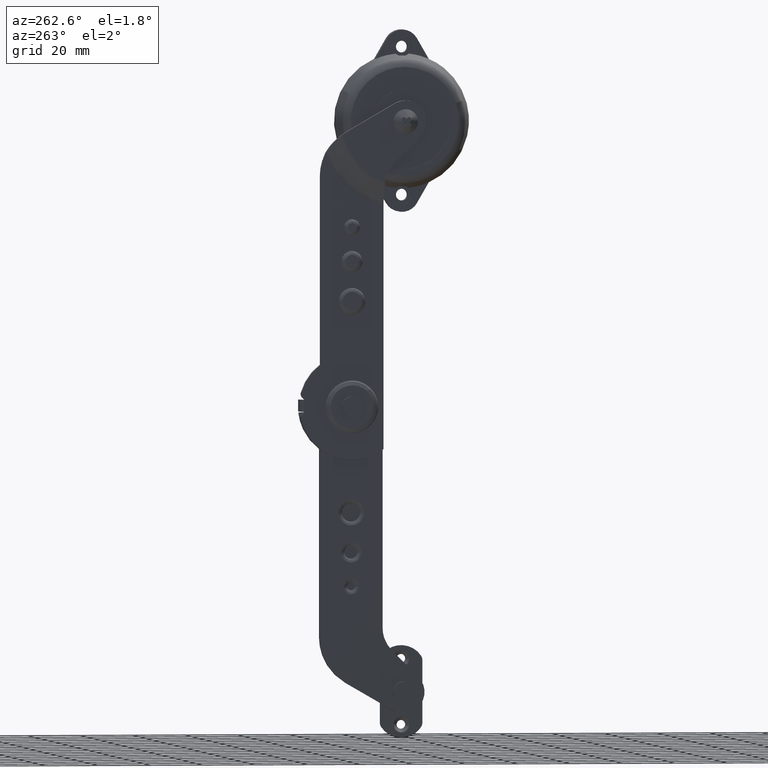
[diagram: clean part render]
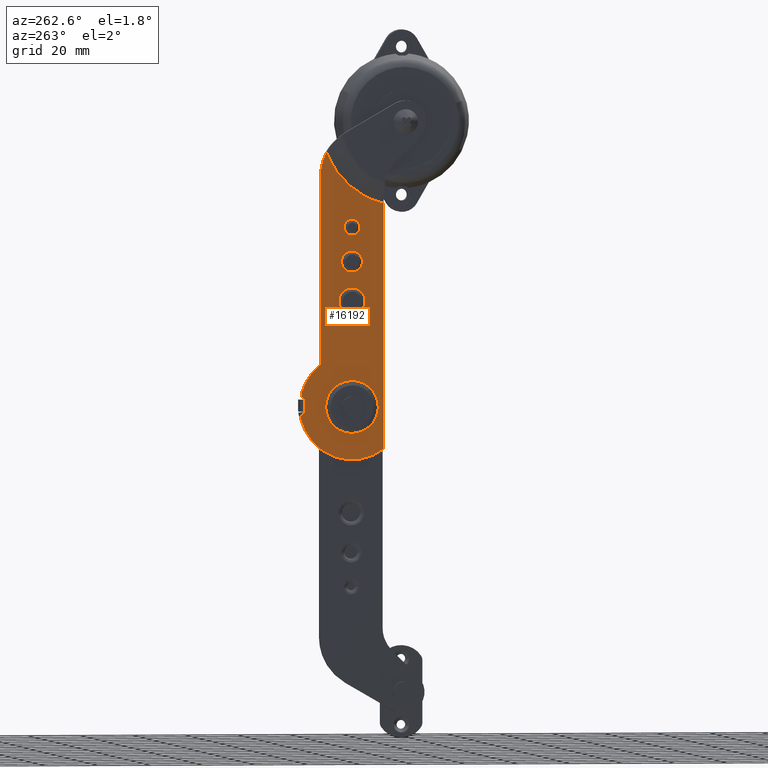
[diagram: same view with one face highlighted and labeled with its STEP entity id]
A machine part, auxiliary view. The second image highlights one B-rep face of the part: STEP entity #16192.
In plain terms, the highlighted face is a freeform B-spline surface patch.
Its self-contained STEP definition (entity closure, byte-faithful):
#13078=CARTESIAN_POINT('',(-1.999999999898364,-9.025852843031693,-4.305110969298060));
#13079=VERTEX_POINT('',#13078);
#13085=CARTESIAN_POINT('',(-2.000000000000140,1.136868E-013,10.000000000000011));
#13086=VERTEX_POINT('',#13085);
#13087=CARTESIAN_POINT('',(-1.999999999898364,-9.025852843031695,-4.305110969298060));
#13088=CARTESIAN_POINT('',(-1.999999999905630,-10.000000000085207,-2.262768983272771));
#13089=CARTESIAN_POINT('',(-1.999999999917144,-10.000000000074809,-3.572830E-011));
#13090=CARTESIAN_POINT('',(-1.999999999968033,-10.000000000028871,9.999999999986184));
#13091=CARTESIAN_POINT('',(-2.000000000000140,1.136868E-013,10.000000000000011));
#13099=(BOUNDED_CURVE()B_SPLINE_CURVE(2,(#13087,#13088,#13089,#13090,#13091),.UNSPECIFIED.,.F.,.U.)B_SPLINE_CURVE_WITH_KNOTS((3,2,3),(0.676854720116742,0.750000000000000,1.0),.UNSPECIFIED.)CURVE()GEOMETRIC_REPRESENTATION_ITEM()RATIONAL_B_SPLINE_CURVE((0.878755441483299,0.914304974135927,1.0,0.707106781186548,1.0))REPRESENTATION_ITEM(''));
#13100=EDGE_CURVE('',#13079,#13086,#13099,.T.);
#13102=CARTESIAN_POINT('',(-1.999999999898348,9.025852843031935,4.305110969298012));
#13103=VERTEX_POINT('',#13102);
#13104=CARTESIAN_POINT('',(-2.000000000000140,1.136868E-013,10.000000000000011));
#13105=CARTESIAN_POINT('',(-1.999999999949244,6.309530112981989,10.000000000021915));
#13106=CARTESIAN_POINT('',(-1.999999999898349,9.025852843031935,4.305110969298012));
#13114=(BOUNDED_CURVE()B_SPLINE_CURVE(2,(#13104,#13105,#13106),.UNSPECIFIED.,.F.,.U.)B_SPLINE_CURVE_WITH_KNOTS((3,3),(0.0,0.176854720116743),.UNSPECIFIED.)CURVE()GEOMETRIC_REPRESENTATION_ITEM()RATIONAL_B_SPLINE_CURVE((1.0,0.792801807050620,0.878755441483300))REPRESENTATION_ITEM(''));
#13115=EDGE_CURVE('',#13086,#13103,#13114,.T.);
#13161=CARTESIAN_POINT('',(-2.000000000000140,1.136868E-013,-9.999999999999993));
#13162=VERTEX_POINT('',#13161);
#13163=CARTESIAN_POINT('',(-1.999999999898349,9.025852843031935,4.305110969298012));
#13164=CARTESIAN_POINT('',(-1.999999999905615,10.000000000085421,2.262768983272748));
#13165=CARTESIAN_POINT('',(-1.999999999917131,10.000000000075030,3.573943E-011));
#13166=CARTESIAN_POINT('',(-1.999999999968027,10.000000000029097,-9.999999999986173));
#13167=CARTESIAN_POINT('',(-2.000000000000140,1.136868E-013,-9.999999999999993));
#13175=(BOUNDED_CURVE()B_SPLINE_CURVE(2,(#13163,#13164,#13165,#13166,#13167),.UNSPECIFIED.,.F.,.U.)B_SPLINE_CURVE_WITH_KNOTS((3,2,3),(0.176854720116743,0.250000000000000,0.500000000000000),.UNSPECIFIED.)CURVE()GEOMETRIC_REPRESENTATION_ITEM()RATIONAL_B_SPLINE_CURVE((0.878755441483300,0.914304974135928,1.0,0.707106781186548,1.0))REPRESENTATION_ITEM(''));
#13176=EDGE_CURVE('',#13103,#13162,#13175,.T.);
#13178=CARTESIAN_POINT('',(-2.000000000000140,1.136868E-013,-9.999999999999993));
#13179=CARTESIAN_POINT('',(-1.999999999949253,-6.309530112981723,-10.000000000021904));
#13180=CARTESIAN_POINT('',(-1.999999999898364,-9.025852843031695,-4.305110969298060));
#13188=(BOUNDED_CURVE()B_SPLINE_CURVE(2,(#13178,#13179,#13180),.UNSPECIFIED.,.F.,.U.)B_SPLINE_CURVE_WITH_KNOTS((3,3),(0.500000000000000,0.676854720116742),.UNSPECIFIED.)CURVE()GEOMETRIC_REPRESENTATION_ITEM()RATIONAL_B_SPLINE_CURVE((1.0,0.792801807050621,0.878755441483299))REPRESENTATION_ITEM(''));
#13189=EDGE_CURVE('',#13162,#13079,#13188,.T.);
#13946=CARTESIAN_POINT('',(-2.000000001796303,-3.350112159051147,57.185577386590751));
#13947=VERTEX_POINT('',#13946);
#13961=CARTESIAN_POINT('',(-1.999999999999981,0.0,58.999999999997613));
#13962=VERTEX_POINT('',#13961);
#13963=CARTESIAN_POINT('',(-1.999999999999981,0.0,58.999999999997613));
#13964=CARTESIAN_POINT('',(-2.000000000898142,-2.166402228638456,58.999999999690885));
#13965=CARTESIAN_POINT('',(-2.000000001796302,-3.350112159051148,57.185577386590751));
#13973=(BOUNDED_CURVE()B_SPLINE_CURVE(2,(#13963,#13964,#13965),.UNSPECIFIED.,.F.,.U.)B_SPLINE_CURVE_WITH_KNOTS((3,3),(0.0,0.312797065917018),.UNSPECIFIED.)CURVE()GEOMETRIC_REPRESENTATION_ITEM()RATIONAL_B_SPLINE_CURVE((1.0,0.816767721056322,0.862793519052128))REPRESENTATION_ITEM(''));
#13974=EDGE_CURVE('',#13962,#13947,#13973,.T.);
#13976=CARTESIAN_POINT('',(-2.000000001796304,3.350112159051150,52.814422613409242));
#13977=VERTEX_POINT('',#13976);
#13978=CARTESIAN_POINT('',(-2.000000001796305,3.350112159051150,52.814422613409235));
#13979=CARTESIAN_POINT('',(-2.000000001651658,3.999999999133034,53.810588280236679));
#13980=CARTESIAN_POINT('',(-2.000000001384588,3.999999999272832,55.000000000472838));
#13981=CARTESIAN_POINT('',(-2.000000000486427,3.999999999742975,59.000000000163709));
#13982=CARTESIAN_POINT('',(-1.999999999999981,0.0,58.999999999997613));
#13990=(BOUNDED_CURVE()B_SPLINE_CURVE(2,(#13978,#13979,#13980,#13981,#13982),.UNSPECIFIED.,.F.,.U.)B_SPLINE_CURVE_WITH_KNOTS((3,2,3),(0.312797065917017,0.500000000000000,1.0),.UNSPECIFIED.)CURVE()GEOMETRIC_REPRESENTATION_ITEM()RATIONAL_B_SPLINE_CURVE((0.862793519052128,0.890339060130225,1.0,0.707106781186547,1.0))REPRESENTATION_ITEM(''));
#13991=EDGE_CURVE('',#13977,#13962,#13990,.T.);
#14054=CARTESIAN_POINT('',(-2.0,0.0,51.000000000002402));
#14055=VERTEX_POINT('',#14054);
#14056=CARTESIAN_POINT('',(-2.0,0.0,51.000000000002402));
#14057=CARTESIAN_POINT('',(-2.000000000898152,2.166402228638455,51.000000000309122));
#14058=CARTESIAN_POINT('',(-2.000000001796305,3.350112159051150,52.814422613409235));
#14066=(BOUNDED_CURVE()B_SPLINE_CURVE(2,(#14056,#14057,#14058),.UNSPECIFIED.,.F.,.U.)B_SPLINE_CURVE_WITH_KNOTS((3,3),(0.0,0.312797065917017),.UNSPECIFIED.)CURVE()GEOMETRIC_REPRESENTATION_ITEM()RATIONAL_B_SPLINE_CURVE((1.0,0.816767721056322,0.862793519052128))REPRESENTATION_ITEM(''));
#14067=EDGE_CURVE('',#14055,#13977,#14066,.T.);
#14069=CARTESIAN_POINT('',(-2.000000001796302,-3.350112159051148,57.185577386590751));
#14070=CARTESIAN_POINT('',(-2.000000001651658,-3.999999999133023,56.189411719763307));
#14071=CARTESIAN_POINT('',(-2.000000001384591,-3.999999999272824,54.999999999527162));
#14072=CARTESIAN_POINT('',(-2.000000000486440,-3.999999999742973,50.999999999836291));
#14073=CARTESIAN_POINT('',(-2.0,0.0,51.000000000002402));
#14081=(BOUNDED_CURVE()B_SPLINE_CURVE(2,(#14069,#14070,#14071,#14072,#14073),.UNSPECIFIED.,.F.,.U.)B_SPLINE_CURVE_WITH_KNOTS((3,2,3),(0.312797065917018,0.500000000000000,1.0),.UNSPECIFIED.)CURVE()GEOMETRIC_REPRESENTATION_ITEM()RATIONAL_B_SPLINE_CURVE((0.862793519052128,0.890339060130226,1.0,0.707106781186547,1.0))REPRESENTATION_ITEM(''));
#14082=EDGE_CURVE('',#13947,#14055,#14081,.T.);
#14166=CARTESIAN_POINT('',(-2.000000007010111,-4.187640196067919,42.731971732003117));
#14167=VERTEX_POINT('',#14166);
#14181=CARTESIAN_POINT('',(-2.000000000000021,1.136868E-013,45.000000000000192));
#14182=VERTEX_POINT('',#14181);
#14183=CARTESIAN_POINT('',(-2.000000000000021,1.136868E-013,45.000000000000192));
#14184=CARTESIAN_POINT('',(-2.000000003505066,-2.708002784251462,44.999999998803240));
#14185=CARTESIAN_POINT('',(-2.000000007010112,-4.187640196067919,42.731971732003117));
#14193=(BOUNDED_CURVE()B_SPLINE_CURVE(2,(#14183,#14184,#14185),.UNSPECIFIED.,.F.,.U.)B_SPLINE_CURVE_WITH_KNOTS((3,3),(0.0,0.312797065888605),.UNSPECIFIED.)CURVE()GEOMETRIC_REPRESENTATION_ITEM()RATIONAL_B_SPLINE_CURVE((1.0,0.816767721072966,0.862793519043767))REPRESENTATION_ITEM(''));
#14194=EDGE_CURVE('',#14182,#14167,#14193,.T.);
#14196=CARTESIAN_POINT('',(-2.000000007010115,4.187640196068148,37.268028267996883));
#14197=VERTEX_POINT('',#14196);
#14198=CARTESIAN_POINT('',(-2.000000007010115,4.187640196068148,37.268028267996868));
#14199=CARTESIAN_POINT('',(-2.000000006445640,4.999999996626310,38.513235351537574));
#14200=CARTESIAN_POINT('',(-2.000000005403404,4.999999997171873,40.000000001845230));
#14201=CARTESIAN_POINT('',(-2.000000001898357,4.999999999006603,45.000000000648463));
#14202=CARTESIAN_POINT('',(-2.000000000000021,1.136868E-013,45.000000000000192));
#14210=(BOUNDED_CURVE()B_SPLINE_CURVE(2,(#14198,#14199,#14200,#14201,#14202),.UNSPECIFIED.,.F.,.U.)B_SPLINE_CURVE_WITH_KNOTS((3,2,3),(0.312797065888605,0.500000000000000,1.0),.UNSPECIFIED.)CURVE()GEOMETRIC_REPRESENTATION_ITEM()RATIONAL_B_SPLINE_CURVE((0.862793519043767,0.890339060113582,1.0,0.707106781186548,1.0))REPRESENTATION_ITEM(''));
#14211=EDGE_CURVE('',#14197,#14182,#14210,.T.);
#14274=CARTESIAN_POINT('',(-2.000000000000035,1.136868E-013,34.999999999999822));
#14275=VERTEX_POINT('',#14274);
#14276=CARTESIAN_POINT('',(-2.000000000000035,1.136868E-013,34.999999999999822));
#14277=CARTESIAN_POINT('',(-2.000000003505075,2.708002784251693,35.000000001196781));
#14278=CARTESIAN_POINT('',(-2.000000007010115,4.187640196068148,37.268028267996883));
#14286=(BOUNDED_CURVE()B_SPLINE_CURVE(2,(#14276,#14277,#14278),.UNSPECIFIED.,.F.,.U.)B_SPLINE_CURVE_WITH_KNOTS((3,3),(0.0,0.312797065888605),.UNSPECIFIED.)CURVE()GEOMETRIC_REPRESENTATION_ITEM()RATIONAL_B_SPLINE_CURVE((1.0,0.816767721072966,0.862793519043767))REPRESENTATION_ITEM(''));
#14287=EDGE_CURVE('',#14275,#14197,#14286,.T.);
#14289=CARTESIAN_POINT('',(-2.000000007010112,-4.187640196067919,42.731971732003117));
#14290=CARTESIAN_POINT('',(-2.000000006445637,-4.999999996626084,41.486764648462440));
#14291=CARTESIAN_POINT('',(-2.000000005403404,-4.999999997171646,39.999999998154770));
#14292=CARTESIAN_POINT('',(-2.000000001898366,-4.999999999006375,34.999999999351552));
#14293=CARTESIAN_POINT('',(-2.000000000000035,1.136868E-013,34.999999999999822));
#14301=(BOUNDED_CURVE()B_SPLINE_CURVE(2,(#14289,#14290,#14291,#14292,#14293),.UNSPECIFIED.,.F.,.U.)B_SPLINE_CURVE_WITH_KNOTS((3,2,3),(0.312797065888605,0.500000000000000,1.0),.UNSPECIFIED.)CURVE()GEOMETRIC_REPRESENTATION_ITEM()RATIONAL_B_SPLINE_CURVE((0.862793519043767,0.890339060113581,1.0,0.707106781186548,1.0))REPRESENTATION_ITEM(''));
#14302=EDGE_CURVE('',#14167,#14275,#14301,.T.);
#14690=CARTESIAN_POINT('',(-2.000000000024074,0.0,65.000000000017337));
#14691=VERTEX_POINT('',#14690);
#14725=CARTESIAN_POINT('',(-2.000000000012017,0.0,70.999999999990195));
#14726=VERTEX_POINT('',#14725);
#14742=CARTESIAN_POINT('',(-2.000000000024074,0.0,65.000000000017337));
#14743=CARTESIAN_POINT('',(-2.000000000024074,0.392768043786944,64.999542033756953));
#14744=CARTESIAN_POINT('',(-2.000000000023819,1.030469033287618,65.127233266377189));
#14745=CARTESIAN_POINT('',(-2.000000000022864,1.869754850051697,65.602531432663497));
#14746=CARTESIAN_POINT('',(-2.000000000021577,2.494798584165423,66.243008080790759));
#14747=CARTESIAN_POINT('',(-2.000000000019998,2.876314599047245,67.024970495723906));
#14748=CARTESIAN_POINT('',(-2.000000000018413,3.025327959765366,67.826062924761928));
#14749=CARTESIAN_POINT('',(-2.000000000016630,2.972479820169463,68.691362776971189));
#14750=CARTESIAN_POINT('',(-2.000000000014945,2.629547074028307,69.548831412236012));
#14751=CARTESIAN_POINT('',(-2.000000000013367,1.975563725265460,70.326035205304578));
#14752=CARTESIAN_POINT('',(-2.000000000012296,1.104320124707930,70.862835522886954));
#14753=CARTESIAN_POINT('',(-2.000000000012016,0.368145682975373,71.000299599565423));
#14754=CARTESIAN_POINT('',(-2.000000000012017,0.0,70.999999999990195));
#14755=B_SPLINE_CURVE_WITH_KNOTS('',3,(#14742,#14743,#14744,#14745,#14746,#14747,#14748,#14749,#14750,#14751,#14752,#14753,#14754),.UNSPECIFIED.,.F.,.U.,(4,1,1,1,1,1,1,1,1,1,4),(0.000001790281056,1.178061172659323,1.914418879228660,2.871745702420085,3.829015889850578,4.491696999046352,5.301418579992856,6.406058932452281,7.216034190309014,8.320633919790765,9.425014467606015),.UNSPECIFIED.);
#14756=EDGE_CURVE('',#14691,#14726,#14755,.T.);
#14805=CARTESIAN_POINT('',(-2.000000000012017,0.0,70.999999999990195));
#14806=CARTESIAN_POINT('',(-2.000000000012022,-0.343646992545134,71.000257906673241));
#14807=CARTESIAN_POINT('',(-2.000000000012203,-0.883408049740910,70.906147637640217));
#14808=CARTESIAN_POINT('',(-2.000000000012948,-1.663796865759524,70.537143646748063));
#14809=CARTESIAN_POINT('',(-2.000000000013975,-2.272469852727591,70.025066406917645));
#14810=CARTESIAN_POINT('',(-2.000000000015355,-2.718031469576183,69.339792727320329));
#14811=CARTESIAN_POINT('',(-2.000000000017089,-3.015714453660978,68.475917837572240));
#14812=CARTESIAN_POINT('',(-2.000000000019157,-3.028373308778458,67.447685377911327));
#14813=CARTESIAN_POINT('',(-2.000000000021065,-2.648066272950905,66.497513493989374));
#14814=CARTESIAN_POINT('',(-2.000000000022305,-2.154023694954324,65.880642883134698));
#14815=CARTESIAN_POINT('',(-2.000000000023122,-1.658353186133160,65.473830315171611));
#14816=CARTESIAN_POINT('',(-2.000000000023856,-0.956947271819298,65.109857994059709));
#14817=CARTESIAN_POINT('',(-2.000000000024074,-0.368174859532798,64.999652610779137));
#14818=CARTESIAN_POINT('',(-2.000000000024074,0.0,65.000000000017337));
#14819=B_SPLINE_CURVE_WITH_KNOTS('',3,(#14805,#14806,#14807,#14808,#14809,#14810,#14811,#14812,#14813,#14814,#14815,#14816,#14817,#14818),.UNSPECIFIED.,.F.,.U.,(4,1,1,1,1,1,1,1,1,1,1,4),(0.000001790265815,1.030838436003519,1.619928622852167,2.577166494894646,3.387158789861413,4.049929322243203,5.301418579991310,6.406058932452229,7.068766472407342,7.657867175381379,8.320633919790723,9.425014467606019),.UNSPECIFIED.);
#14820=EDGE_CURVE('',#14726,#14691,#14819,.T.);
#15075=CARTESIAN_POINT('',(-1.999999999999895,18.000000000000551,-1.750000000000220));
#15076=VERTEX_POINT('',#15075);
#15090=CARTESIAN_POINT('',(-1.999999999999880,18.0,2.750000000000000));
#15091=VERTEX_POINT('',#15090);
#15092=CARTESIAN_POINT('',(-1.999999999999895,18.000000000000551,-1.750000000000220));
#15093=CARTESIAN_POINT('',(-1.999999999999880,18.0,2.750000000000000));
#15094=QUASI_UNIFORM_CURVE('',1,(#15092,#15093),.UNSPECIFIED.,.F.,.U.);
#15095=EDGE_CURVE('',#15076,#15091,#15094,.T.);
#15215=CARTESIAN_POINT('',(-1.999999999999870,19.245019821889748,5.443272182712180));
#15216=VERTEX_POINT('',#15215);
#15222=CARTESIAN_POINT('',(-2.000000000000120,12.000000000000400,16.0));
#15223=VERTEX_POINT('',#15222);
#15224=CARTESIAN_POINT('',(-1.999999999999870,19.245019821889748,5.443272182712180));
#15225=CARTESIAN_POINT('',(-1.999999999999890,17.405906158468316,11.945570381148972));
#15226=CARTESIAN_POINT('',(-1.999999999999890,12.000000000000430,16.000000000000050));
#15234=(BOUNDED_CURVE()B_SPLINE_CURVE(2,(#15224,#15225,#15226),.UNSPECIFIED.,.F.,.U.)CURVE()GEOMETRIC_REPRESENTATION_ITEM()QUASI_UNIFORM_CURVE()RATIONAL_B_SPLINE_CURVE((1.0,0.947386268099017,1.0))REPRESENTATION_ITEM(''));
#15235=EDGE_CURVE('',#15216,#15223,#15234,.T.);
#15274=CARTESIAN_POINT('',(-1.999999999999880,18.734731402068199,3.484731402062105));
#15275=VERTEX_POINT('',#15274);
#15281=CARTESIAN_POINT('',(-1.999999999999875,18.734731402068199,3.484731402062103));
#15282=CARTESIAN_POINT('',(-1.999999999999875,19.564330359362824,4.314330359350046));
#15283=CARTESIAN_POINT('',(-1.999999999999875,19.245019821889709,5.443272182712169));
#15291=(BOUNDED_CURVE()B_SPLINE_CURVE(2,(#15281,#15282,#15283),.UNSPECIFIED.,.F.,.U.)CURVE()GEOMETRIC_REPRESENTATION_ITEM()QUASI_UNIFORM_CURVE()RATIONAL_B_SPLINE_CURVE((1.0,0.862544337234567,1.0))REPRESENTATION_ITEM(''));
#15292=EDGE_CURVE('',#15275,#15216,#15291,.T.);
#15313=CARTESIAN_POINT('',(-1.999999999999880,18.0,2.750000000000000));
#15314=CARTESIAN_POINT('',(-1.999999999999880,18.734731402068199,3.484731402062105));
#15315=QUASI_UNIFORM_CURVE('',1,(#15313,#15314),.UNSPECIFIED.,.F.,.U.);
#15316=EDGE_CURVE('',#15091,#15275,#15315,.T.);
#15384=CARTESIAN_POINT('',(-1.999999999999900,18.940051797775450,-2.690051797775175));
#15385=VERTEX_POINT('',#15384);
#15391=CARTESIAN_POINT('',(-1.999999999999900,18.940051797775450,-2.690051797775175));
#15392=CARTESIAN_POINT('',(-1.999999999999895,18.000000000000551,-1.750000000000220));
#15393=QUASI_UNIFORM_CURVE('',1,(#15391,#15392),.UNSPECIFIED.,.F.,.U.);
#15394=EDGE_CURVE('',#15385,#15076,#15393,.T.);
#15429=CARTESIAN_POINT('',(-1.999999999999910,19.473153594891500,-4.560294844609249));
#15430=VERTEX_POINT('',#15429);
#15436=CARTESIAN_POINT('',(-1.999999999999905,19.473153594891532,-4.560294844609256));
#15437=CARTESIAN_POINT('',(-1.999999999999905,19.726873254097079,-3.476873254096735));
#15438=CARTESIAN_POINT('',(-1.999999999999905,18.940051797775460,-2.690051797775164));
#15446=(BOUNDED_CURVE()B_SPLINE_CURVE(2,(#15436,#15437,#15438),.UNSPECIFIED.,.F.,.U.)CURVE()GEOMETRIC_REPRESENTATION_ITEM()QUASI_UNIFORM_CURVE()RATIONAL_B_SPLINE_CURVE((1.0,0.873856160206027,1.0))REPRESENTATION_ITEM(''));
#15447=EDGE_CURVE('',#15430,#15385,#15446,.T.);
#15486=CARTESIAN_POINT('',(-2.000000000000240,-11.999999999999760,-15.999999999999501));
#15487=VERTEX_POINT('',#15486);
#15493=CARTESIAN_POINT('',(-2.000000000000240,-11.999999999999760,-15.999999999999501));
#15494=CARTESIAN_POINT('',(-2.000000000000177,-10.305728844890730,-17.272310268193841));
#15495=CARTESIAN_POINT('',(-2.000000000000077,-7.665780243662476,-18.660041971315461));
#15496=CARTESIAN_POINT('',(-2.000000000000006,-3.866892364055190,-19.685280557329200));
#15497=CARTESIAN_POINT('',(-1.999999999999931,-0.577945146775864,-20.109171775965901));
#15498=CARTESIAN_POINT('',(-1.999999999999907,2.900196048401581,-19.907206829213770));
#15499=CARTESIAN_POINT('',(-1.999999999999930,6.470009656007568,-19.018354519356478));
#15500=CARTESIAN_POINT('',(-1.999999999999877,9.328714128581771,-17.786865548481799));
#15501=CARTESIAN_POINT('',(-1.999999999999899,12.302431954943691,-15.899016874334359));
#15502=CARTESIAN_POINT('',(-1.999999999999877,15.218630404335530,-13.236573004363301));
#15503=CARTESIAN_POINT('',(-1.999999999999917,17.915994807046371,-9.343329810357039));
#15504=CARTESIAN_POINT('',(-1.999999999999852,19.084784878585751,-6.220731638391777));
#15505=CARTESIAN_POINT('',(-1.999999999999910,19.473153594891500,-4.560294844609249));
#15506=B_SPLINE_CURVE_WITH_KNOTS('',3,(#15493,#15494,#15495,#15496,#15497,#15498,#15499,#15500,#15501,#15502,#15503,#15504,#15505),.UNSPECIFIED.,.F.,.U.,(4,1,1,1,1,1,1,1,1,1,4),(0.000000334982190,6.355823591909505,8.836178476829602,11.781591961333509,16.277238097023051,19.222627747033140,22.788017396434022,25.578352453399599,29.763962740495799,34.569657730579927,39.685283542333941),.UNSPECIFIED.);
#15507=EDGE_CURVE('',#15487,#15430,#15506,.T.);
#15699=CARTESIAN_POINT('',(-1.999999999999895,-11.999999999999600,77.016133230340614));
#15700=VERTEX_POINT('',#15699);
#15708=CARTESIAN_POINT('',(-1.999999999999895,-11.999999999999600,77.016133230340614));
#15709=CARTESIAN_POINT('',(-2.000000000000240,-11.999999999999760,-15.999999999999501));
#15710=QUASI_UNIFORM_CURVE('',1,(#15708,#15709),.UNSPECIFIED.,.F.,.U.);
#15711=EDGE_CURVE('',#15700,#15487,#15710,.T.);
#15939=CARTESIAN_POINT('',(-1.999999999999900,12.0,87.199415000000101));
#15940=VERTEX_POINT('',#15939);
#15946=CARTESIAN_POINT('',(-1.999999999999825,9.795297129198499,96.327799308493312));
#15947=VERTEX_POINT('',#15946);
#15948=CARTESIAN_POINT('',(-1.999999999999900,12.000000000000110,87.199415000000101));
#15949=CARTESIAN_POINT('',(-1.999999999999899,12.000000000000112,92.029848943825954));
#15950=CARTESIAN_POINT('',(-1.999999999999900,9.795297129198469,96.327799308493297));
#15958=(BOUNDED_CURVE()B_SPLINE_CURVE(2,(#15948,#15949,#15950),.UNSPECIFIED.,.F.,.U.)CURVE()GEOMETRIC_REPRESENTATION_ITEM()QUASI_UNIFORM_CURVE()RATIONAL_B_SPLINE_CURVE((1.0,0.972050630486889,1.0))REPRESENTATION_ITEM(''));
#15959=EDGE_CURVE('',#15940,#15947,#15958,.T.);
#16039=CARTESIAN_POINT('',(-1.999999999999780,9.795297129198490,96.327799308493312));
#16040=CARTESIAN_POINT('',(-1.999999999999780,3.831337079326949,81.103766887435711));
#16041=CARTESIAN_POINT('',(-1.999999999999780,-11.999999999999600,77.016133230340628));
#16049=(BOUNDED_CURVE()B_SPLINE_CURVE(2,(#16039,#16040,#16041),.UNSPECIFIED.,.F.,.U.)CURVE()GEOMETRIC_REPRESENTATION_ITEM()QUASI_UNIFORM_CURVE()RATIONAL_B_SPLINE_CURVE((1.0,0.890491297027661,1.0))REPRESENTATION_ITEM(''));
#16050=EDGE_CURVE('',#15947,#15700,#16049,.T.);
#16097=CARTESIAN_POINT('',(-2.000000000000120,12.000000000000400,16.0));
#16098=CARTESIAN_POINT('',(-1.999999999999900,12.0,87.199415000000101));
#16099=QUASI_UNIFORM_CURVE('',1,(#16097,#16098),.UNSPECIFIED.,.F.,.U.);
#16100=EDGE_CURVE('',#15223,#15940,#16099,.T.);
#16152=CARTESIAN_POINT('',(-1.999999999999285,21.100503934942800,102.138211920868900));
#16153=CARTESIAN_POINT('',(-1.999999999999285,21.100503934942800,-25.807197760677759));
#16154=CARTESIAN_POINT('',(-1.999999999999285,-13.574714032342630,102.138211920868900));
#16155=CARTESIAN_POINT('',(-1.999999999999285,-13.574714032342630,-25.807197760677759));
#16156=B_SPLINE_SURFACE_WITH_KNOTS('',1,1,((#16152,#16154),(#16153,#16155)),.UNSPECIFIED.,.F.,.F.,.U.,(2,2),(2,2),(0.0,127.945409681546710),(0.0,34.675217967285427),.UNSPECIFIED.);
#16157=ORIENTED_EDGE('',*,*,#15394,.F.);
#16158=ORIENTED_EDGE('',*,*,#15447,.F.);
#16159=ORIENTED_EDGE('',*,*,#15507,.F.);
#16160=ORIENTED_EDGE('',*,*,#15711,.F.);
#16161=ORIENTED_EDGE('',*,*,#16050,.F.);
#16162=ORIENTED_EDGE('',*,*,#15959,.F.);
#16163=ORIENTED_EDGE('',*,*,#16100,.F.);
#16164=ORIENTED_EDGE('',*,*,#15235,.F.);
#16165=ORIENTED_EDGE('',*,*,#15292,.F.);
#16166=ORIENTED_EDGE('',*,*,#15316,.F.);
#16167=ORIENTED_EDGE('',*,*,#15095,.F.);
#16168=EDGE_LOOP('',(#16157,#16158,#16159,#16160,#16161,#16162,#16163,#16164,#16165,#16166,#16167));
#16169=FACE_OUTER_BOUND('',#16168,.T.);
#16170=ORIENTED_EDGE('',*,*,#14756,.T.);
#16171=ORIENTED_EDGE('',*,*,#14820,.T.);
#16172=EDGE_LOOP('',(#16170,#16171));
#16173=FACE_BOUND('',#16172,.T.);
#16174=ORIENTED_EDGE('',*,*,#14194,.T.);
#16175=ORIENTED_EDGE('',*,*,#14302,.T.);
#16176=ORIENTED_EDGE('',*,*,#14287,.T.);
#16177=ORIENTED_EDGE('',*,*,#14211,.T.);
#16178=EDGE_LOOP('',(#16174,#16175,#16176,#16177));
#16179=FACE_BOUND('',#16178,.T.);
#16180=ORIENTED_EDGE('',*,*,#13974,.T.);
#16181=ORIENTED_EDGE('',*,*,#14082,.T.);
#16182=ORIENTED_EDGE('',*,*,#14067,.T.);
#16183=ORIENTED_EDGE('',*,*,#13991,.T.);
#16184=EDGE_LOOP('',(#16180,#16181,#16182,#16183));
#16185=FACE_BOUND('',#16184,.T.);
#16186=ORIENTED_EDGE('',*,*,#13189,.F.);
#16187=ORIENTED_EDGE('',*,*,#13176,.F.);
#16188=ORIENTED_EDGE('',*,*,#13115,.F.);
#16189=ORIENTED_EDGE('',*,*,#13100,.F.);
#16190=EDGE_LOOP('',(#16186,#16187,#16188,#16189));
#16191=FACE_BOUND('',#16190,.T.);
#16192=ADVANCED_FACE('',(#16169,#16173,#16179,#16185,#16191),#16156,.T.);